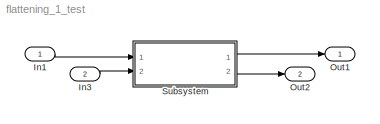
MODEL flattening_1_test
KIND model
BLOCK [Inport] In1
  IconDisplay = Port number
  SID = 1
BLOCK [Inport] In3
  IconDisplay = Port number
  Port = 2
  SID = 2
BLOCK [Outport] Out1
  IconDisplay = Port number
  SID = 26
BLOCK [Outport] Out2
  IconDisplay = Port number
  Port = 2
  SID = 27
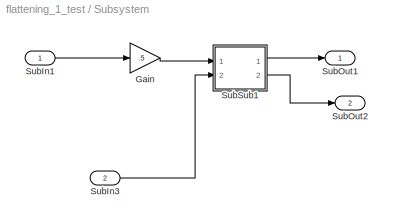
BLOCK [SubSystem] Subsystem
  Ports = [2, 2]
  RequestExecContextInheritance = off
  SID = 3
  Variant = off
BLOCK [Gain] Subsystem/Gain
  Gain = .5
  OutDataTypeStr = Inherit: Inherit via internal rule
  ParamDataTypeStr = Inherit: Inherit via internal rule
  SID = 6
  SaturateOnIntegerOverflow = off
BLOCK [Inport] Subsystem/SubIn1
  IconDisplay = Port number
  SID = 4
BLOCK [Inport] Subsystem/SubIn3
  IconDisplay = Port number
  Port = 2
  SID = 5
BLOCK [Outport] Subsystem/SubOut1
  IconDisplay = Port number
  SID = 24
BLOCK [Outport] Subsystem/SubOut2
  IconDisplay = Port number
  Port = 2
  SID = 25
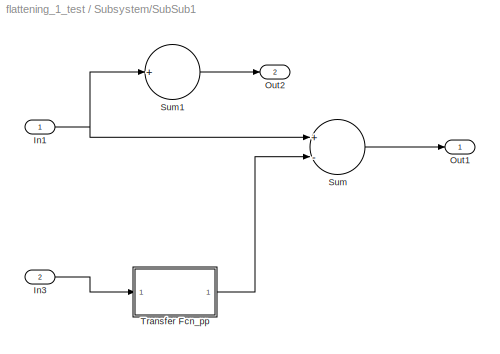
BLOCK [SubSystem] Subsystem/SubSub1
  Ports = [2, 2]
  RequestExecContextInheritance = off
  SID = 7
  Variant = off
BLOCK [Inport] Subsystem/SubSub1/In1
  IconDisplay = Port number
  SID = 8
BLOCK [Inport] Subsystem/SubSub1/In3
  IconDisplay = Port number
  Port = 2
  SID = 9
BLOCK [Outport] Subsystem/SubSub1/Out1
  IconDisplay = Port number
  SID = 22
BLOCK [Outport] Subsystem/SubSub1/Out2
  IconDisplay = Port number
  Port = 2
  SID = 23
BLOCK [Sum] Subsystem/SubSub1/Sum
  InputSameDT = off
  Inputs = +-
  OutDataTypeStr = Inherit: Inherit via internal rule
  Ports = [2, 1]
  SID = 10
  SaturateOnIntegerOverflow = off
BLOCK [Sum] Subsystem/SubSub1/Sum1
  InputSameDT = off
  Inputs = +
  OutDataTypeStr = Inherit: Inherit via internal rule
  Ports = [1, 1]
  SID = 11
  SaturateOnIntegerOverflow = off
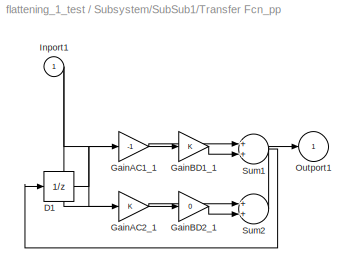
BLOCK [SubSystem] Subsystem/SubSub1/Transfer Fcn_pp
  Ports = [1, 1]
  RequestExecContextInheritance = off
  SID = 12
  Variant = off
BLOCK [UnitDelay] Subsystem/SubSub1/Transfer Fcn_pp/D1
  SID = 14
  SampleTime = -1
BLOCK [Gain] Subsystem/SubSub1/Transfer Fcn_pp/GainAC1_1
  Gain = -1
  SID = 15
BLOCK [Gain] Subsystem/SubSub1/Transfer Fcn_pp/GainAC2_1
  SID = 16
BLOCK [Gain] Subsystem/SubSub1/Transfer Fcn_pp/GainBD1_1
  SID = 17
BLOCK [Gain] Subsystem/SubSub1/Transfer Fcn_pp/GainBD2_1
  Gain = 0
  SID = 18
BLOCK [Inport] Subsystem/SubSub1/Transfer Fcn_pp/Inport1
  IconDisplay = Port number
  SID = 13
BLOCK [Outport] Subsystem/SubSub1/Transfer Fcn_pp/Outport1
  IconDisplay = Port number
  SID = 21
BLOCK [Sum] Subsystem/SubSub1/Transfer Fcn_pp/Sum1
  Ports = [2, 1]
  SID = 19
BLOCK [Sum] Subsystem/SubSub1/Transfer Fcn_pp/Sum2
  Ports = [2, 1]
  SID = 20
LINE In1:1 -> Subsystem:1
LINE In3:1 -> Subsystem:2
LINE Subsystem/Gain:1 -> Subsystem/SubSub1:1
LINE Subsystem/SubIn1:1 -> Subsystem/Gain:1
LINE Subsystem/SubIn3:1 -> Subsystem/SubSub1:2
NET Subsystem/SubSub1/In1:1 -> Subsystem/SubSub1/Sum1:1, Subsystem/SubSub1/Sum:1
LINE Subsystem/SubSub1/In3:1 -> Subsystem/SubSub1/Transfer Fcn_pp:1
LINE Subsystem/SubSub1/Sum1:1 -> Subsystem/SubSub1/Out2:1
LINE Subsystem/SubSub1/Sum:1 -> Subsystem/SubSub1/Out1:1
NET Subsystem/SubSub1/Transfer Fcn_pp/D1:1 -> Subsystem/SubSub1/Transfer Fcn_pp/GainAC1_1:1, Subsystem/SubSub1/Transfer Fcn_pp/GainAC2_1:1
LINE Subsystem/SubSub1/Transfer Fcn_pp/GainAC1_1:1 -> Subsystem/SubSub1/Transfer Fcn_pp/Sum1:1
LINE Subsystem/SubSub1/Transfer Fcn_pp/GainAC2_1:1 -> Subsystem/SubSub1/Transfer Fcn_pp/Sum2:1
LINE Subsystem/SubSub1/Transfer Fcn_pp/GainBD1_1:1 -> Subsystem/SubSub1/Transfer Fcn_pp/Sum1:2
LINE Subsystem/SubSub1/Transfer Fcn_pp/GainBD2_1:1 -> Subsystem/SubSub1/Transfer Fcn_pp/Sum2:2
NET Subsystem/SubSub1/Transfer Fcn_pp/Inport1:1 -> Subsystem/SubSub1/Transfer Fcn_pp/GainBD1_1:1, Subsystem/SubSub1/Transfer Fcn_pp/GainBD2_1:1
LINE Subsystem/SubSub1/Transfer Fcn_pp/Sum1:1 -> Subsystem/SubSub1/Transfer Fcn_pp/D1:1
LINE Subsystem/SubSub1/Transfer Fcn_pp/Sum2:1 -> Subsystem/SubSub1/Transfer Fcn_pp/Outport1:1
LINE Subsystem/SubSub1/Transfer Fcn_pp:1 -> Subsystem/SubSub1/Sum:2
LINE Subsystem/SubSub1:1 -> Subsystem/SubOut1:1
LINE Subsystem/SubSub1:2 -> Subsystem/SubOut2:1
LINE Subsystem:1 -> Out1:1
LINE Subsystem:2 -> Out2:1
note: NET lines group one-source signal fan-out (src -> all destinations, sorted); 1:1 wires keep LINE
